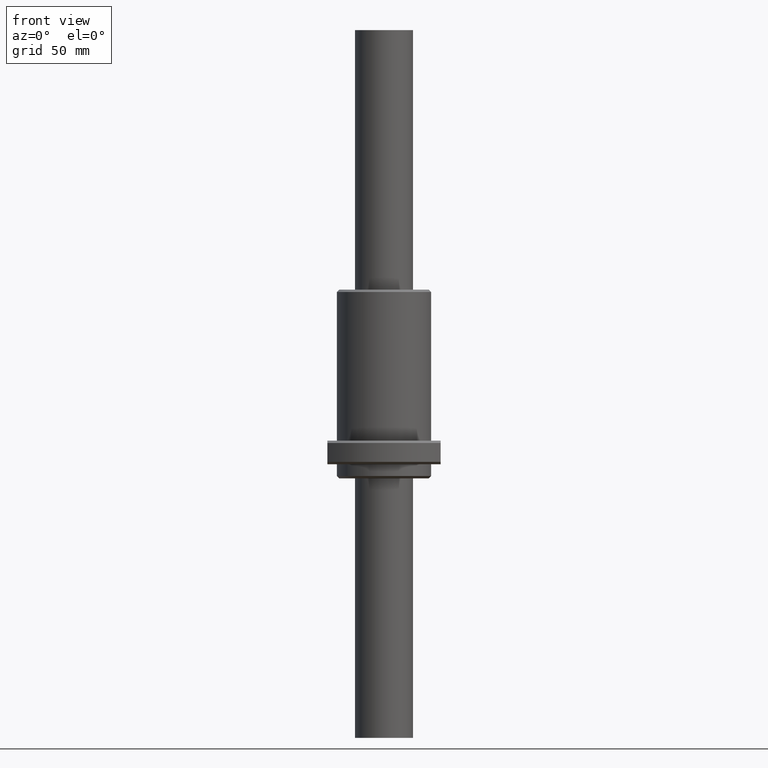
[diagram: clean part render]
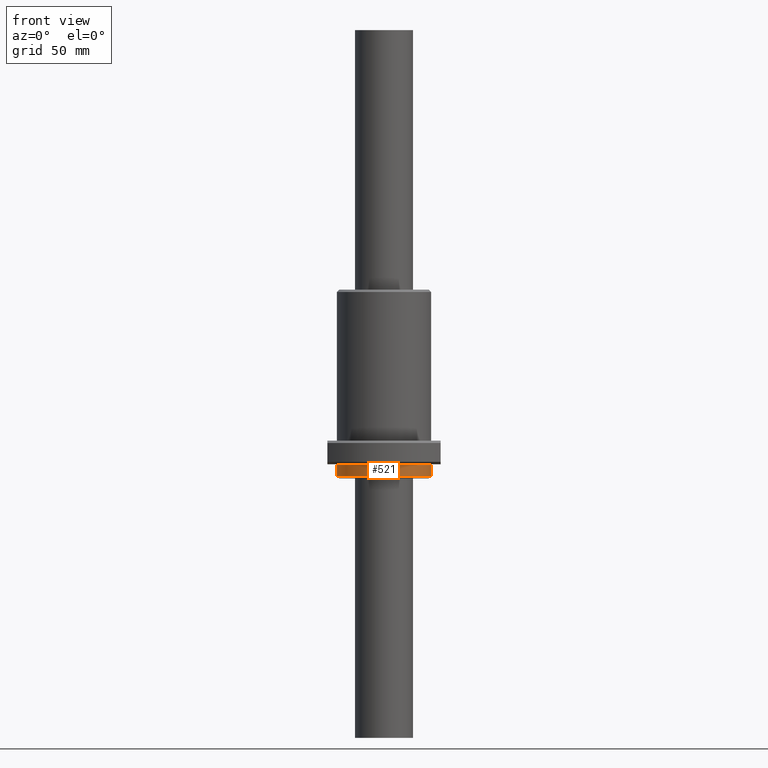
[diagram: same view with one face highlighted and labeled with its STEP entity id]
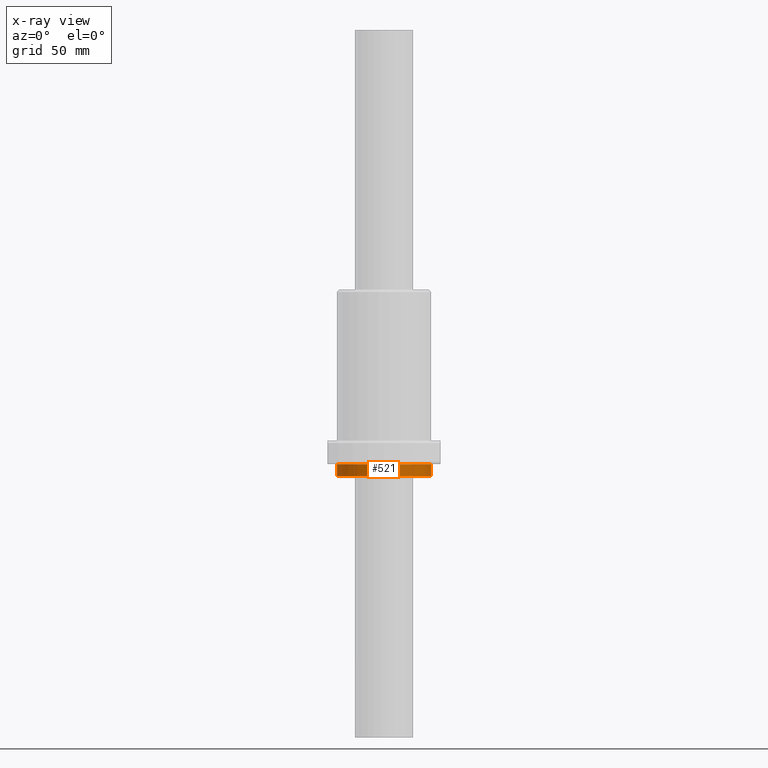
[diagram: x-ray of the same camera — body ghosted, the highlighted face saturated]
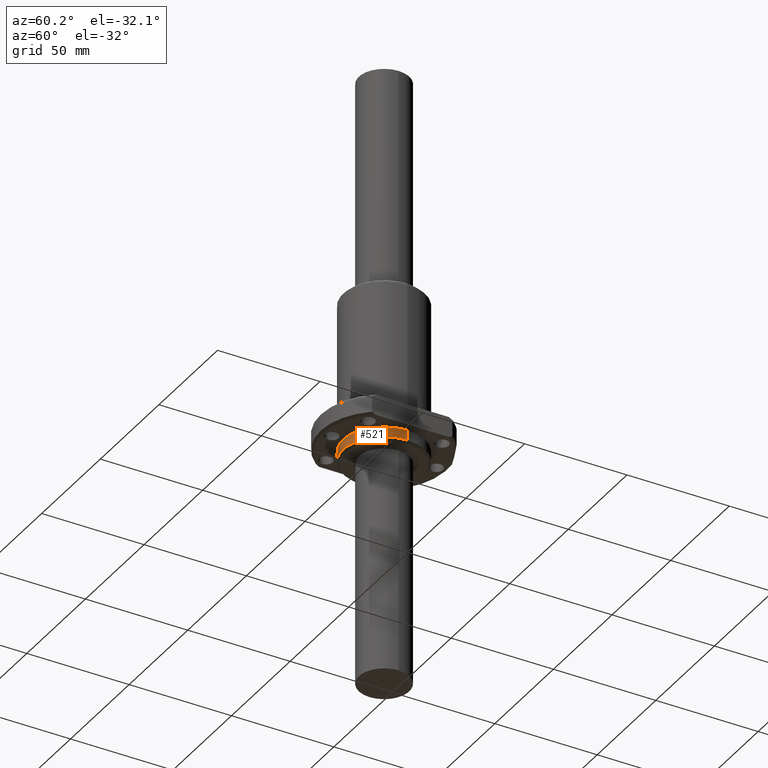
[diagram: same view with one face highlighted and labeled with its STEP entity id]
A machine part, front view. The second image highlights one B-rep face of the part: STEP entity #521.
The next image is the same camera in x-ray: the body ghosted, the highlighted face saturated — about 0% of this face is hidden behind the body in this view.
A second angle (auxiliary view) of the same face is appended — the face is thin or edge-on in the first view.
In plain terms, the highlighted cylindrical surface (partial cylindrical patch) has radius 20 mm, axis along (0, 0, -1).
Its self-contained STEP definition (entity closure, byte-faithful):
#193 = ORIENTED_EDGE ( 'NONE', *, *, #782, .T. ) ;
#272 = VERTEX_POINT ( 'NONE', #579 ) ;
#339 = VERTEX_POINT ( 'NONE', #1352 ) ;
#521 = ADVANCED_FACE ( 'NONE', ( #1649 ), #1018, .T. ) ;
#579 = CARTESIAN_POINT ( 'NONE',  ( -19.99999305000000000, 0.0000000000000000000, -1.000000000000000000 ) ) ;
#679 = ORIENTED_EDGE ( 'NONE', *, *, #1420, .F. ) ;
#782 = EDGE_CURVE ( 'NONE', #339, #1346, #1061, .T. ) ;
#804 = DIRECTION ( 'NONE',  ( 0.0000000000000000000, -0.0000000000000000000, 1.000000000000000000 ) ) ;
#808 = CARTESIAN_POINT ( 'NONE',  ( 19.99999305000000000, 0.0000000000000000000, -5.999994000000000000 ) ) ;
#809 = LINE ( 'NONE', #808, #1347 ) ;
#938 = DIRECTION ( 'NONE',  ( 0.0000000000000000000, -0.0000000000000000000, 1.000000000000000000 ) ) ;
#941 = CARTESIAN_POINT ( 'NONE',  ( -19.99999305000000000, 2.449292747165181300E-015, -5.999994000000000000 ) ) ;
#950 = CIRCLE ( 'NONE', #1231, 19.99999304999999700 ) ;
#953 = LINE ( 'NONE', #941, #1210 ) ;
#1018 = CYLINDRICAL_SURFACE ( 'NONE', #1248, 19.99999305000000000 ) ;
#1042 = EDGE_CURVE ( 'NONE', #272, #1082, #950, .T. ) ;
#1061 = CIRCLE ( 'NONE', #1319, 19.99999305000000000 ) ;
#1082 = VERTEX_POINT ( 'NONE', #1309 ) ;
#1105 = CARTESIAN_POINT ( 'NONE',  ( 19.99999305000000000, 0.0000000000000000000, -5.999994000000000000 ) ) ;
#1167 = ORIENTED_EDGE ( 'NONE', *, *, #1042, .F. ) ;
#1210 = VECTOR ( 'NONE', #938, 1000.000000000000000 ) ;
#1214 = ORIENTED_EDGE ( 'NONE', *, *, #1536, .T. ) ;
#1231 = AXIS2_PLACEMENT_3D ( 'NONE', #1369, #1366, #1365 ) ;
#1248 = AXIS2_PLACEMENT_3D ( 'NONE', #1765, #1763, #1759 ) ;
#1309 = CARTESIAN_POINT ( 'NONE',  ( 19.99999305000000000, 2.449292747165181300E-015, -1.000000000000000000 ) ) ;
#1319 = AXIS2_PLACEMENT_3D ( 'NONE', #1648, #1645, #1641 ) ;
#1346 = VERTEX_POINT ( 'NONE', #1105 ) ;
#1347 = VECTOR ( 'NONE', #804, 1000.000000000000000 ) ;
#1352 = CARTESIAN_POINT ( 'NONE',  ( -19.99999305000000000, 2.449292747165181300E-015, -5.999994000000000000 ) ) ;
#1365 = DIRECTION ( 'NONE',  ( 1.000000000000000000, 0.0000000000000000000, 0.0000000000000000000 ) ) ;
#1366 = DIRECTION ( 'NONE',  ( 0.0000000000000000000, 0.0000000000000000000, 1.000000000000000000 ) ) ;
#1369 = CARTESIAN_POINT ( 'NONE',  ( 0.0000000000000000000, 0.0000000000000000000, -1.000000000000000000 ) ) ;
#1420 = EDGE_CURVE ( 'NONE', #339, #272, #953, .T. ) ;
#1426 = EDGE_LOOP ( 'NONE', ( #679, #193, #1214, #1167 ) ) ;
#1536 = EDGE_CURVE ( 'NONE', #1346, #1082, #809, .T. ) ;
#1641 = DIRECTION ( 'NONE',  ( 1.000000000000000000, 0.0000000000000000000, 0.0000000000000000000 ) ) ;
#1645 = DIRECTION ( 'NONE',  ( 0.0000000000000000000, -0.0000000000000000000, 1.000000000000000000 ) ) ;
#1648 = CARTESIAN_POINT ( 'NONE',  ( 0.0000000000000000000, 0.0000000000000000000, -5.999994000000000000 ) ) ;
#1649 = FACE_OUTER_BOUND ( 'NONE', #1426, .T. ) ;
#1759 = DIRECTION ( 'NONE',  ( 1.000000000000000000, 0.0000000000000000000, 0.0000000000000000000 ) ) ;
#1763 = DIRECTION ( 'NONE',  ( 0.0000000000000000000, -0.0000000000000000000, 1.000000000000000000 ) ) ;
#1765 = CARTESIAN_POINT ( 'NONE',  ( 0.0000000000000000000, 0.0000000000000000000, -5.999994000000000000 ) ) ;